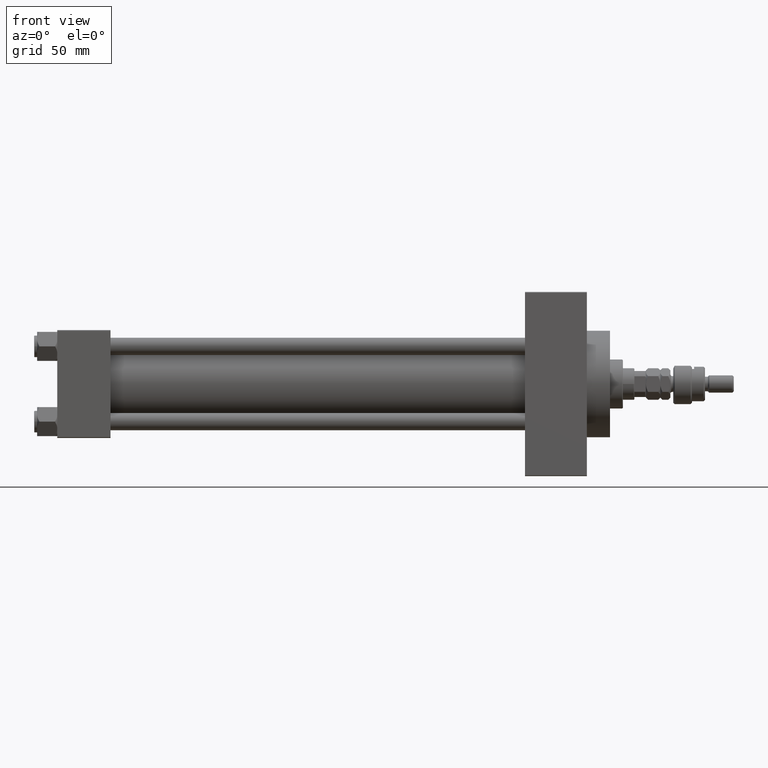
[diagram: clean part render]
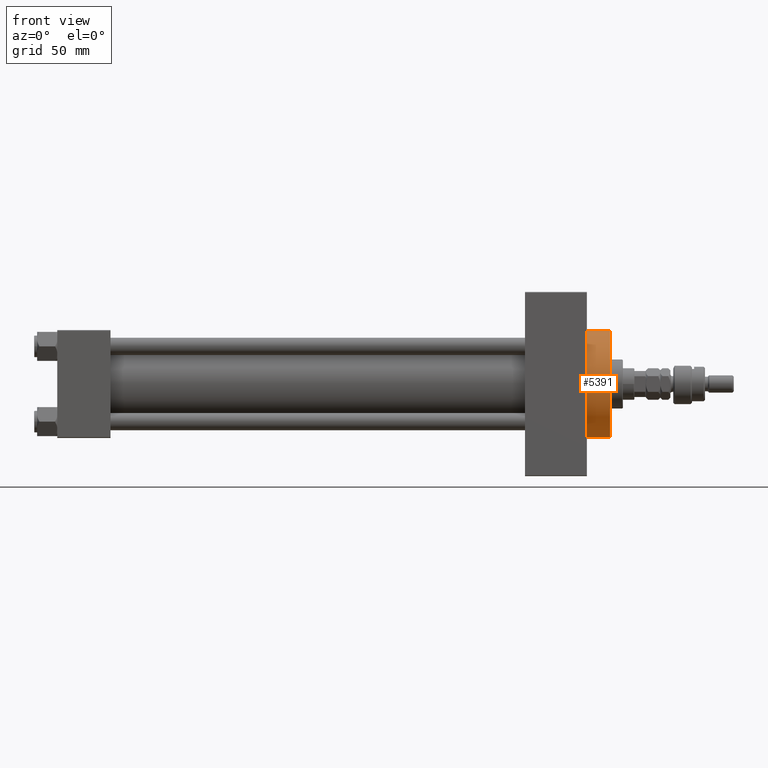
[diagram: same view with one face highlighted and labeled with its STEP entity id]
A machine part, front view. The second image highlights one B-rep face of the part: STEP entity #5391.
In plain terms, the highlighted cylindrical surface (partial cylindrical patch) has radius 37 mm, axis along (-1, -0, -0).
Its self-contained STEP definition (entity closure, byte-faithful):
#1033 = DIRECTION ( 'NONE',  ( 0.000000000000000000, 0.000000000000000000, -1.000000000000000000 ) ) ;
#5391 = ADVANCED_FACE ( 'NONE', ( #48968 ), #25916, .T. ) ;
#5466 = CARTESIAN_POINT ( 'NONE',  ( 383.9999999999999432, 4.531193156845206793E-15, -37.00000000000000000 ) ) ;
#6121 = EDGE_LOOP ( 'NONE', ( #11137, #32029, #7158, #48507 ) ) ;
#7060 = VERTEX_POINT ( 'NONE', #49425 ) ;
#7158 = ORIENTED_EDGE ( 'NONE', *, *, #47889, .T. ) ;
#9815 = DIRECTION ( 'NONE',  ( -1.000000000000000000, -0.000000000000000000, -0.000000000000000000 ) ) ;
#11137 = ORIENTED_EDGE ( 'NONE', *, *, #41419, .F. ) ;
#13621 = LINE ( 'NONE', #29047, #22686 ) ;
#14050 = DIRECTION ( 'NONE',  ( -1.000000000000000000, -0.000000000000000000, -0.000000000000000000 ) ) ;
#15371 = EDGE_CURVE ( 'NONE', #33749, #7060, #30366, .T. ) ;
#16828 = DIRECTION ( 'NONE',  ( -1.000000000000000000, -0.000000000000000000, -0.000000000000000000 ) ) ;
#17638 = VECTOR ( 'NONE', #16828, 1000.000000000000000 ) ;
#18813 = DIRECTION ( 'NONE',  ( 0.000000000000000000, 0.000000000000000000, -1.000000000000000000 ) ) ;
#22686 = VECTOR ( 'NONE', #9815, 1000.000000000000000 ) ;
#25108 = VERTEX_POINT ( 'NONE', #35574 ) ;
#25916 = CYLINDRICAL_SURFACE ( 'NONE', #29506, 37.00000000000000000 ) ;
#29047 = CARTESIAN_POINT ( 'NONE',  ( 383.9999999999999432, 0.000000000000000000, 37.00000000000000000 ) ) ;
#29062 = AXIS2_PLACEMENT_3D ( 'NONE', #32121, #36156, #1033 ) ;
#29506 = AXIS2_PLACEMENT_3D ( 'NONE', #48228, #14050, #33270 ) ;
#30203 = DIRECTION ( 'NONE',  ( 1.000000000000000000, 0.000000000000000000, 0.000000000000000000 ) ) ;
#30366 = CIRCLE ( 'NONE', #36831, 37.00000000000000000 ) ;
#32014 = LINE ( 'NONE', #5466, #17638 ) ;
#32029 = ORIENTED_EDGE ( 'NONE', *, *, #45089, .F. ) ;
#32121 = CARTESIAN_POINT ( 'NONE',  ( 383.9999999999999432, 0.000000000000000000, 0.000000000000000000 ) ) ;
#33270 = DIRECTION ( 'NONE',  ( 0.000000000000000000, 0.000000000000000000, 1.000000000000000000 ) ) ;
#33749 = VERTEX_POINT ( 'NONE', #43735 ) ;
#35574 = CARTESIAN_POINT ( 'NONE',  ( 383.9999999999999432, 0.000000000000000000, 37.00000000000000000 ) ) ;
#36156 = DIRECTION ( 'NONE',  ( 1.000000000000000000, 0.000000000000000000, 0.000000000000000000 ) ) ;
#36831 = AXIS2_PLACEMENT_3D ( 'NONE', #49452, #30203, #18813 ) ;
#37972 = CARTESIAN_POINT ( 'NONE',  ( 383.9999999999999432, 4.531193156845206793E-15, -37.00000000000000000 ) ) ;
#40675 = VERTEX_POINT ( 'NONE', #37972 ) ;
#41419 = EDGE_CURVE ( 'NONE', #40675, #7060, #32014, .T. ) ;
#43609 = CIRCLE ( 'NONE', #29062, 37.00000000000000000 ) ;
#43735 = CARTESIAN_POINT ( 'NONE',  ( 367.9999999999999432, 0.000000000000000000, 37.00000000000000000 ) ) ;
#45089 = EDGE_CURVE ( 'NONE', #25108, #40675, #43609, .T. ) ;
#47889 = EDGE_CURVE ( 'NONE', #25108, #33749, #13621, .T. ) ;
#48228 = CARTESIAN_POINT ( 'NONE',  ( 383.9999999999999432, 0.000000000000000000, 0.000000000000000000 ) ) ;
#48507 = ORIENTED_EDGE ( 'NONE', *, *, #15371, .T. ) ;
#48968 = FACE_OUTER_BOUND ( 'NONE', #6121, .T. ) ;
#49425 = CARTESIAN_POINT ( 'NONE',  ( 367.9999999999999432, 4.531193156845206793E-15, -37.00000000000000000 ) ) ;
#49452 = CARTESIAN_POINT ( 'NONE',  ( 367.9999999999999432, 0.000000000000000000, 0.000000000000000000 ) ) ;